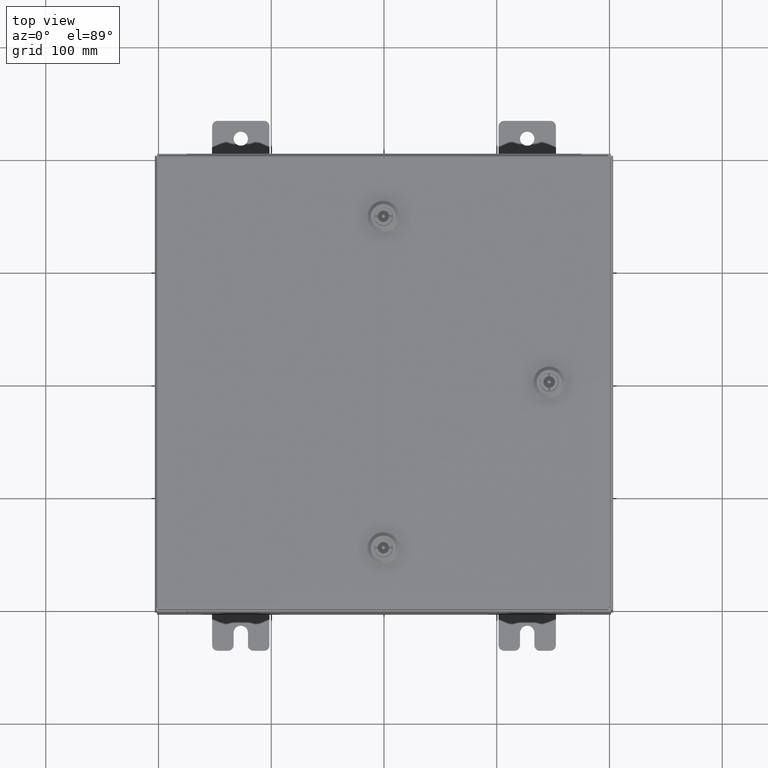
[diagram: clean part render]
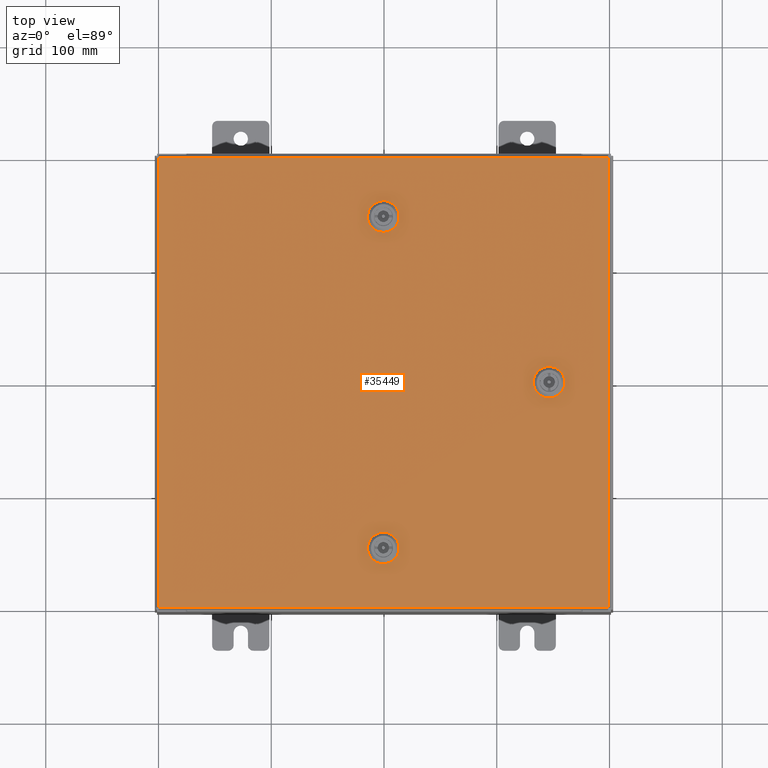
[diagram: same view with one face highlighted and labeled with its STEP entity id]
A machine part, top view. The second image highlights one B-rep face of the part: STEP entity #35449.
In plain terms, the highlighted planar face has unit normal (-0.0015, -0, -1).
Its self-contained STEP definition (entity closure, byte-faithful):
#369 = PLANE ( 'NONE',  #8977 ) ;
#614 = CARTESIAN_POINT ( 'NONE',  ( 6.182800000000003000, 0.1994523752679009100, 0.0000000000000000000 ) ) ;
#891 = CARTESIAN_POINT ( 'NONE',  ( 5.787800000000007800, 1.529834876451990400E-014, 0.0000000000000000000 ) ) ;
#1592 = VECTOR ( 'NONE', #13974, 39.37007874015748100 ) ;
#2240 = ORIENTED_EDGE ( 'NONE', *, *, #59409, .F. ) ;
#2310 = CIRCLE ( 'NONE', #56032, 0.4424999999999972800 ) ;
#3017 = VERTEX_POINT ( 'NONE', #11123 ) ;
#3082 = EDGE_CURVE ( 'NONE', #46224, #3017, #52050, .T. ) ;
#4541 = FACE_BOUND ( 'NONE', #16748, .T. ) ;
#4625 = CARTESIAN_POINT ( 'NONE',  ( 7.849800000000000100, -7.849800000000000100, -2.219626494852214000E-016 ) ) ;
#4889 = CARTESIAN_POINT ( 'NONE',  ( 1.529834876451987200E-014, -5.787799999999992700, -4.962582086151294400E-014 ) ) ;
#5657 = DIRECTION ( 'NONE',  ( 1.000000000000000000, 0.0000000000000000000, 0.0000000000000000000 ) ) ;
#5714 = CARTESIAN_POINT ( 'NONE',  ( 6.182800000000003000, 0.1994523752679009100, 0.0000000000000000000 ) ) ;
#6027 = FACE_BOUND ( 'NONE', #35167, .T. ) ;
#6035 = CARTESIAN_POINT ( 'NONE',  ( 0.1994523752679070700, -6.182799999999984300, -5.238409111919896100E-014 ) ) ;
#6070 = VERTEX_POINT ( 'NONE', #41552 ) ;
#7809 = CARTESIAN_POINT ( 'NONE',  ( -7.849800000000000100, -7.849800000000000100, -2.219626494852214000E-016 ) ) ;
#8403 = ORIENTED_EDGE ( 'NONE', *, *, #32814, .F. ) ;
#8772 = VECTOR ( 'NONE', #51466, 39.37007874015748100 ) ;
#8977 = AXIS2_PLACEMENT_3D ( 'NONE', #9920, #43251, #14700 ) ;
#9285 = VERTEX_POINT ( 'NONE', #48750 ) ;
#9287 = VERTEX_POINT ( 'NONE', #20229 ) ;
#9316 = ORIENTED_EDGE ( 'NONE', *, *, #19581, .T. ) ;
#9668 = DIRECTION ( 'NONE',  ( 0.0000000000000000000, 1.000000000000000000, 6.982962677686269100E-015 ) ) ;
#9711 = CARTESIAN_POINT ( 'NONE',  ( -0.1994523752678689600, -5.392799999999994900, -4.686755060382689000E-014 ) ) ;
#9920 = CARTESIAN_POINT ( 'NONE',  ( 0.0000000000000000000, 0.0000000000000000000, 0.0000000000000000000 ) ) ;
#9981 = ORIENTED_EDGE ( 'NONE', *, *, #52591, .F. ) ;
#10855 = VECTOR ( 'NONE', #49102, 39.37007874015748100 ) ;
#11123 = CARTESIAN_POINT ( 'NONE',  ( 0.1994523752678995500, -5.392799999999995800, -4.686755060382689600E-014 ) ) ;
#11172 = CARTESIAN_POINT ( 'NONE',  ( 5.392800000000015400, 0.1994523752679053800, 0.0000000000000000000 ) ) ;
#11243 = LINE ( 'NONE', #47323, #1592 ) ;
#11435 = EDGE_CURVE ( 'NONE', #40747, #39968, #51650, .T. ) ;
#11439 = CARTESIAN_POINT ( 'NONE',  ( 0.4425000000000126100, 5.787799999999992700, 0.0000000000000000000 ) ) ;
#12108 = CARTESIAN_POINT ( 'NONE',  ( 1.529834876451987200E-014, 5.787799999999992700, 0.0000000000000000000 ) ) ;
#12212 = VERTEX_POINT ( 'NONE', #49519 ) ;
#12876 = AXIS2_PLACEMENT_3D ( 'NONE', #12108, #45441, #16904 ) ;
#12951 = CARTESIAN_POINT ( 'NONE',  ( 1.529834876451987200E-014, 5.787799999999992700, 0.0000000000000000000 ) ) ;
#13309 = CARTESIAN_POINT ( 'NONE',  ( 0.1994523752678995500, -5.392799999999995800, -4.686755060382689600E-014 ) ) ;
#13974 = DIRECTION ( 'NONE',  ( 1.000000000000000000, 2.739348669069617500E-015, -0.0000000000000000000 ) ) ;
#14028 = ORIENTED_EDGE ( 'NONE', *, *, #17950, .F. ) ;
#14074 = AXIS2_PLACEMENT_3D ( 'NONE', #891, #34175, #5657 ) ;
#14228 = VECTOR ( 'NONE', #60807, 39.37007874015748100 ) ;
#14349 = EDGE_CURVE ( 'NONE', #9285, #36352, #60470, .T. ) ;
#14700 = DIRECTION ( 'NONE',  ( -1.000000000000000000, 0.0000000000000000000, -0.0000000000000000000 ) ) ;
#14814 = VECTOR ( 'NONE', #39025, 39.37007874015748100 ) ;
#15107 = CARTESIAN_POINT ( 'NONE',  ( 7.849800000000000100, -7.849800000000000100, -2.219626494852214000E-016 ) ) ;
#15175 = DIRECTION ( 'NONE',  ( -1.000000000000000000, 1.369674334534795400E-014, 0.0000000000000000000 ) ) ;
#16729 = AXIS2_PLACEMENT_3D ( 'NONE', #19819, #53176, #24608 ) ;
#16748 = EDGE_LOOP ( 'NONE', ( #40866, #44816, #46612, #8403 ) ) ;
#16904 = DIRECTION ( 'NONE',  ( 1.000000000000000000, 0.0000000000000000000, 0.0000000000000000000 ) ) ;
#16952 = VECTOR ( 'NONE', #21871, 39.37007874015748100 ) ;
#17766 = DIRECTION ( 'NONE',  ( 1.000000000000000000, 0.0000000000000000000, 0.0000000000000000000 ) ) ;
#17950 = EDGE_CURVE ( 'NONE', #12212, #55662, #60451, .T. ) ;
#18712 = CIRCLE ( 'NONE', #16729, 0.4424999999999983400 ) ;
#18824 = LINE ( 'NONE', #34122, #41171 ) ;
#18880 = CARTESIAN_POINT ( 'NONE',  ( -0.1994523752678689600, 5.392799999999994900, 0.0000000000000000000 ) ) ;
#19581 = EDGE_CURVE ( 'NONE', #59416, #60313, #50607, .T. ) ;
#19819 = CARTESIAN_POINT ( 'NONE',  ( 1.529834876451987200E-014, -5.787799999999992700, -4.962582086151294400E-014 ) ) ;
#20229 = CARTESIAN_POINT ( 'NONE',  ( 5.392800000000015400, 0.1994523752679058200, 0.0000000000000000000 ) ) ;
#20342 = CARTESIAN_POINT ( 'NONE',  ( -7.849800000000000100, 7.849800000000000100, -2.048885995248197400E-016 ) ) ;
#20554 = CARTESIAN_POINT ( 'NONE',  ( 1.529834876451987200E-014, 5.787799999999992700, 0.0000000000000000000 ) ) ;
#21871 = DIRECTION ( 'NONE',  ( 1.000000000000000000, 1.369674334534795400E-014, 9.732121487607481600E-029 ) ) ;
#22983 = EDGE_CURVE ( 'NONE', #33554, #46224, #2310, .T. ) ;
#24608 = DIRECTION ( 'NONE',  ( 0.0000000000000000000, 1.000000000000000000, 6.982962677686252500E-015 ) ) ;
#24897 = DIRECTION ( 'NONE',  ( 0.0000000000000000000, 0.0000000000000000000, 1.000000000000000000 ) ) ;
#25208 = EDGE_CURVE ( 'NONE', #39968, #25723, #26023, .T. ) ;
#25241 = VECTOR ( 'NONE', #29683, 39.37007874015748100 ) ;
#25340 = DIRECTION ( 'NONE',  ( 1.000000000000000000, 0.0000000000000000000, 0.0000000000000000000 ) ) ;
#25717 = CARTESIAN_POINT ( 'NONE',  ( 1.529834876451987200E-014, -5.787799999999992700, -4.962582086151294400E-014 ) ) ;
#25723 = VERTEX_POINT ( 'NONE', #614 ) ;
#26023 = LINE ( 'NONE', #5714, #14814 ) ;
#26050 = EDGE_CURVE ( 'NONE', #60313, #30797, #55857, .T. ) ;
#26921 = LINE ( 'NONE', #46706, #14228 ) ;
#27574 = CARTESIAN_POINT ( 'NONE',  ( 6.182800000000007400, -0.1994523752678676000, 0.0000000000000000000 ) ) ;
#27684 = EDGE_CURVE ( 'NONE', #46091, #33554, #43764, .T. ) ;
#27700 = LINE ( 'NONE', #7809, #53067 ) ;
#29683 = DIRECTION ( 'NONE',  ( 0.0000000000000000000, 1.000000000000000000, 0.0000000000000000000 ) ) ;
#29833 = ORIENTED_EDGE ( 'NONE', *, *, #59317, .T. ) ;
#30489 = DIRECTION ( 'NONE',  ( 0.0000000000000000000, 1.000000000000000000, 6.982962677686269100E-015 ) ) ;
#30797 = VERTEX_POINT ( 'NONE', #20342 ) ;
#31671 = VERTEX_POINT ( 'NONE', #42672 ) ;
#32621 = VERTEX_POINT ( 'NONE', #9711 ) ;
#32814 = EDGE_CURVE ( 'NONE', #25723, #9287, #43431, .T. ) ;
#33422 = EDGE_CURVE ( 'NONE', #31671, #12212, #18824, .T. ) ;
#33554 = VERTEX_POINT ( 'NONE', #6035 ) ;
#33618 = AXIS2_PLACEMENT_3D ( 'NONE', #20554, #53914, #25340 ) ;
#34122 = CARTESIAN_POINT ( 'NONE',  ( 0.1994523752679067700, 6.182799999999984300, 0.0000000000000000000 ) ) ;
#34175 = DIRECTION ( 'NONE',  ( 0.0000000000000000000, 0.0000000000000000000, 1.000000000000000000 ) ) ;
#35167 = EDGE_LOOP ( 'NONE', ( #46313, #48300, #9981, #48776, #37806 ) ) ;
#35449 = ADVANCED_FACE ( 'NONE', ( #4541, #6027, #53760, #41044 ), #369, .F. ) ;
#35694 = AXIS2_PLACEMENT_3D ( 'NONE', #25717, #59093, #30489 ) ;
#36339 = DIRECTION ( 'NONE',  ( 1.000000000000000000, -0.0000000000000000000, -0.0000000000000000000 ) ) ;
#36352 = VERTEX_POINT ( 'NONE', #11439 ) ;
#37806 = ORIENTED_EDGE ( 'NONE', *, *, #22983, .F. ) ;
#38130 = ORIENTED_EDGE ( 'NONE', *, *, #33422, .F. ) ;
#38186 = DIRECTION ( 'NONE',  ( -0.0000000000000000000, -6.982962677686266700E-015, 1.000000000000000000 ) ) ;
#38789 = ORIENTED_EDGE ( 'NONE', *, *, #26050, .T. ) ;
#39025 = DIRECTION ( 'NONE',  ( -8.218046007208852600E-015, 1.000000000000000000, -0.0000000000000000000 ) ) ;
#39301 = AXIS2_PLACEMENT_3D ( 'NONE', #12951, #46307, #17766 ) ;
#39915 = CARTESIAN_POINT ( 'NONE',  ( 0.4425000000000126100, -5.787799999999992700, -4.962582086151294400E-014 ) ) ;
#39968 = VERTEX_POINT ( 'NONE', #27574 ) ;
#40130 = CARTESIAN_POINT ( 'NONE',  ( 7.849800000000000100, 7.849800000000000100, -2.219626494852214000E-016 ) ) ;
#40697 = CARTESIAN_POINT ( 'NONE',  ( 7.849800000000000100, 7.849800000000000100, -2.219626494852214000E-016 ) ) ;
#40747 = VERTEX_POINT ( 'NONE', #47643 ) ;
#40866 = ORIENTED_EDGE ( 'NONE', *, *, #25208, .F. ) ;
#41044 = FACE_OUTER_BOUND ( 'NONE', #52731, .T. ) ;
#41171 = VECTOR ( 'NONE', #15175, 39.37007874015748100 ) ;
#41552 = CARTESIAN_POINT ( 'NONE',  ( -7.849800000000000100, -7.849800000000000100, -2.219626494852214000E-016 ) ) ;
#41717 = EDGE_CURVE ( 'NONE', #32621, #46091, #18712, .T. ) ;
#42672 = CARTESIAN_POINT ( 'NONE',  ( 0.1994523752679068500, 6.182799999999984300, 0.0000000000000000000 ) ) ;
#43251 = DIRECTION ( 'NONE',  ( 0.0000000000000000000, 0.0000000000000000000, -1.000000000000000000 ) ) ;
#43431 = CIRCLE ( 'NONE', #14074, 0.4424999999999972800 ) ;
#43764 = LINE ( 'NONE', #50389, #16952 ) ;
#44118 = CARTESIAN_POINT ( 'NONE',  ( -0.1994523752678657400, -6.182799999999990500, 0.0000000000000000000 ) ) ;
#44816 = ORIENTED_EDGE ( 'NONE', *, *, #11435, .F. ) ;
#45441 = DIRECTION ( 'NONE',  ( 0.0000000000000000000, 0.0000000000000000000, 1.000000000000000000 ) ) ;
#46091 = VERTEX_POINT ( 'NONE', #44118 ) ;
#46224 = VERTEX_POINT ( 'NONE', #39915 ) ;
#46307 = DIRECTION ( 'NONE',  ( 0.0000000000000000000, 0.0000000000000000000, 1.000000000000000000 ) ) ;
#46313 = ORIENTED_EDGE ( 'NONE', *, *, #27684, .F. ) ;
#46612 = ORIENTED_EDGE ( 'NONE', *, *, #55151, .F. ) ;
#46706 = CARTESIAN_POINT ( 'NONE',  ( -7.849800000000000100, 7.849800000000000100, -2.048885995248197400E-016 ) ) ;
#47323 = CARTESIAN_POINT ( 'NONE',  ( 0.1994523752678995500, 5.392799999999995800, 0.0000000000000000000 ) ) ;
#47403 = LINE ( 'NONE', #11172, #10855 ) ;
#47643 = CARTESIAN_POINT ( 'NONE',  ( 5.392800000000011800, -0.1994523752678671000, 0.0000000000000000000 ) ) ;
#48300 = ORIENTED_EDGE ( 'NONE', *, *, #41717, .F. ) ;
#48750 = CARTESIAN_POINT ( 'NONE',  ( 0.1994523752678995500, 5.392799999999995800, 0.0000000000000000000 ) ) ;
#48776 = ORIENTED_EDGE ( 'NONE', *, *, #3082, .F. ) ;
#49102 = DIRECTION ( 'NONE',  ( -1.095739467627836100E-014, -1.000000000000000000, 0.0000000000000000000 ) ) ;
#49116 = AXIS2_PLACEMENT_3D ( 'NONE', #53455, #24897, #58261 ) ;
#49519 = CARTESIAN_POINT ( 'NONE',  ( -0.1994523752678657400, 6.182799999999989600, 0.0000000000000000000 ) ) ;
#49743 = DIRECTION ( 'NONE',  ( -1.000000000000000000, -0.0000000000000000000, -0.0000000000000000000 ) ) ;
#50389 = CARTESIAN_POINT ( 'NONE',  ( 0.1994523752679067700, -6.182799999999984300, -5.238409111919896100E-014 ) ) ;
#50607 = LINE ( 'NONE', #15107, #25241 ) ;
#51372 = ORIENTED_EDGE ( 'NONE', *, *, #53833, .F. ) ;
#51466 = DIRECTION ( 'NONE',  ( -1.000000000000000000, 2.739348669069617500E-015, 1.946424297521515400E-029 ) ) ;
#51540 = ORIENTED_EDGE ( 'NONE', *, *, #14349, .F. ) ;
#51650 = CIRCLE ( 'NONE', #49116, 0.4424999999999983400 ) ;
#52050 = CIRCLE ( 'NONE', #35694, 0.4424999999999972800 ) ;
#52591 = EDGE_CURVE ( 'NONE', #3017, #32621, #59527, .T. ) ;
#52731 = EDGE_LOOP ( 'NONE', ( #61783, #9316, #38789, #29833 ) ) ;
#53067 = VECTOR ( 'NONE', #36339, 39.37007874015748100 ) ;
#53176 = DIRECTION ( 'NONE',  ( -0.0000000000000000000, -6.982962677686266700E-015, 1.000000000000000000 ) ) ;
#53455 = CARTESIAN_POINT ( 'NONE',  ( 5.787800000000007800, 1.529834876451990400E-014, 0.0000000000000000000 ) ) ;
#53594 = EDGE_LOOP ( 'NONE', ( #2240, #14028, #38130, #51372, #51540 ) ) ;
#53760 = FACE_BOUND ( 'NONE', #53594, .T. ) ;
#53833 = EDGE_CURVE ( 'NONE', #36352, #31671, #54976, .T. ) ;
#53914 = DIRECTION ( 'NONE',  ( 0.0000000000000000000, 0.0000000000000000000, 1.000000000000000000 ) ) ;
#54331 = VECTOR ( 'NONE', #49743, 39.37007874015748100 ) ;
#54976 = CIRCLE ( 'NONE', #33618, 0.4424999999999973400 ) ;
#55151 = EDGE_CURVE ( 'NONE', #9287, #40747, #47403, .T. ) ;
#55662 = VERTEX_POINT ( 'NONE', #18880 ) ;
#55857 = LINE ( 'NONE', #40130, #54331 ) ;
#56032 = AXIS2_PLACEMENT_3D ( 'NONE', #4889, #38186, #9668 ) ;
#58261 = DIRECTION ( 'NONE',  ( 1.000000000000000000, 0.0000000000000000000, 0.0000000000000000000 ) ) ;
#59093 = DIRECTION ( 'NONE',  ( -0.0000000000000000000, -6.982962677686266700E-015, 1.000000000000000000 ) ) ;
#59317 = EDGE_CURVE ( 'NONE', #30797, #6070, #26921, .T. ) ;
#59409 = EDGE_CURVE ( 'NONE', #55662, #9285, #11243, .T. ) ;
#59416 = VERTEX_POINT ( 'NONE', #4625 ) ;
#59527 = LINE ( 'NONE', #13309, #8772 ) ;
#60313 = VERTEX_POINT ( 'NONE', #40697 ) ;
#60417 = EDGE_CURVE ( 'NONE', #6070, #59416, #27700, .T. ) ;
#60451 = CIRCLE ( 'NONE', #39301, 0.4424999999999979500 ) ;
#60470 = CIRCLE ( 'NONE', #12876, 0.4424999999999973400 ) ;
#60807 = DIRECTION ( 'NONE',  ( 0.0000000000000000000, -1.000000000000000000, 0.0000000000000000000 ) ) ;
#61783 = ORIENTED_EDGE ( 'NONE', *, *, #60417, .T. ) ;